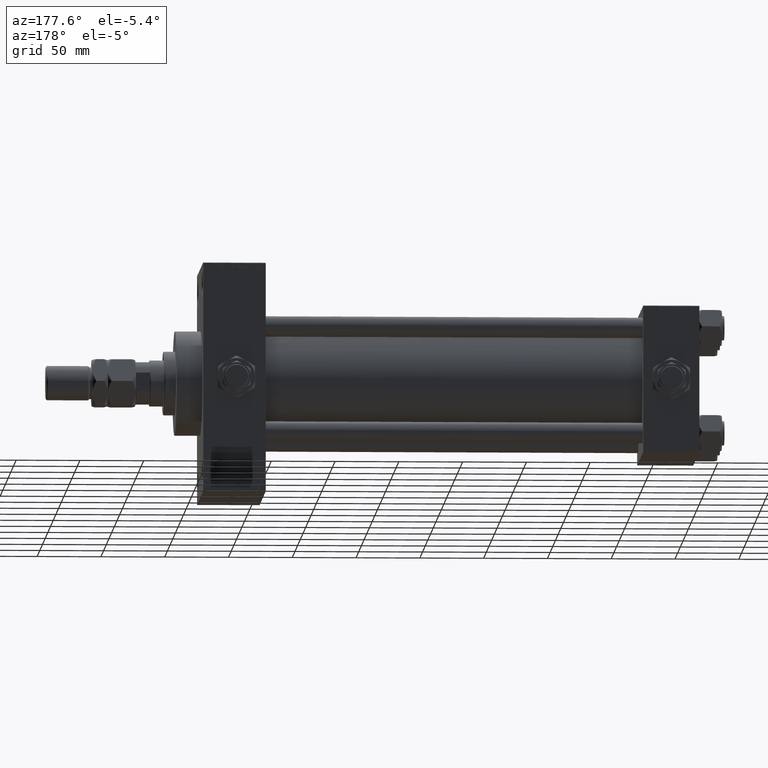
[diagram: clean part render]
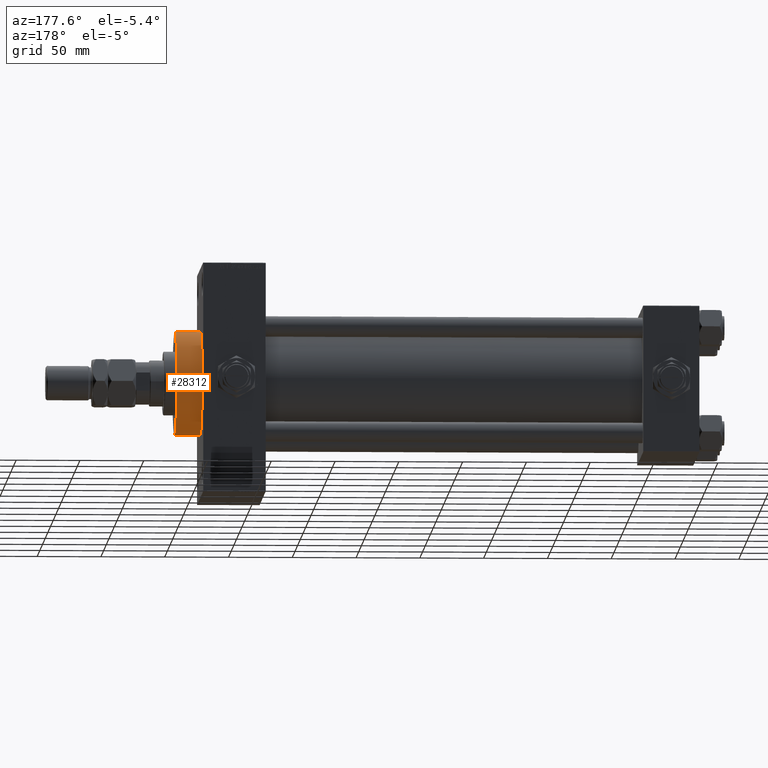
[diagram: same view with one face highlighted and labeled with its STEP entity id]
A machine part, auxiliary view. The second image highlights one B-rep face of the part: STEP entity #28312.
In plain terms, the highlighted cylindrical surface (partial cylindrical patch) has radius 41 mm, axis along (-1, -0, -0).
Its self-contained STEP definition (entity closure, byte-faithful):
#721 = AXIS2_PLACEMENT_3D ( 'NONE', #23708, #46868, #26581 ) ;
#931 = VERTEX_POINT ( 'NONE', #26502 ) ;
#3784 = CARTESIAN_POINT ( 'NONE',  ( 388.9999999999999432, 0.000000000000000000, 0.000000000000000000 ) ) ;
#5220 = DIRECTION ( 'NONE',  ( 0.000000000000000000, 0.000000000000000000, -1.000000000000000000 ) ) ;
#7085 = CYLINDRICAL_SURFACE ( 'NONE', #721, 41.00000000000000000 ) ;
#8625 = DIRECTION ( 'NONE',  ( 1.000000000000000000, 0.000000000000000000, 0.000000000000000000 ) ) ;
#11026 = CARTESIAN_POINT ( 'NONE',  ( 409.0000000000000000, 0.000000000000000000, 41.00000000000000000 ) ) ;
#12021 = CARTESIAN_POINT ( 'NONE',  ( 409.0000000000000000, 0.000000000000000000, 0.000000000000000000 ) ) ;
#16024 = LINE ( 'NONE', #31905, #20043 ) ;
#16832 = VERTEX_POINT ( 'NONE', #31885 ) ;
#18268 = CIRCLE ( 'NONE', #43194, 41.00000000000000000 ) ;
#18822 = VECTOR ( 'NONE', #34597, 1000.000000000000000 ) ;
#19970 = EDGE_CURVE ( 'NONE', #931, #29962, #22629, .T. ) ;
#20043 = VECTOR ( 'NONE', #43845, 1000.000000000000000 ) ;
#20637 = CIRCLE ( 'NONE', #23175, 41.00000000000000000 ) ;
#21092 = DIRECTION ( 'NONE',  ( 0.000000000000000000, 0.000000000000000000, -1.000000000000000000 ) ) ;
#22629 = LINE ( 'NONE', #38511, #18822 ) ;
#23175 = AXIS2_PLACEMENT_3D ( 'NONE', #12021, #8625, #5220 ) ;
#23708 = CARTESIAN_POINT ( 'NONE',  ( 409.0000000000000000, 0.000000000000000000, 0.000000000000000000 ) ) ;
#26502 = CARTESIAN_POINT ( 'NONE',  ( 409.0000000000000000, 5.021051876504148963E-15, -41.00000000000000000 ) ) ;
#26581 = DIRECTION ( 'NONE',  ( 0.000000000000000000, 0.000000000000000000, 1.000000000000000000 ) ) ;
#26744 = ORIENTED_EDGE ( 'NONE', *, *, #19970, .T. ) ;
#28312 = ADVANCED_FACE ( 'NONE', ( #35694 ), #7085, .T. ) ;
#28592 = CARTESIAN_POINT ( 'NONE',  ( 388.9999999999999432, 5.021051876504148963E-15, -41.00000000000000000 ) ) ;
#29962 = VERTEX_POINT ( 'NONE', #28592 ) ;
#31885 = CARTESIAN_POINT ( 'NONE',  ( 388.9999999999999432, 0.000000000000000000, 41.00000000000000000 ) ) ;
#31905 = CARTESIAN_POINT ( 'NONE',  ( 409.0000000000000000, 0.000000000000000000, 41.00000000000000000 ) ) ;
#32360 = ORIENTED_EDGE ( 'NONE', *, *, #41465, .F. ) ;
#32934 = EDGE_CURVE ( 'NONE', #45686, #16832, #16024, .T. ) ;
#34597 = DIRECTION ( 'NONE',  ( -1.000000000000000000, -0.000000000000000000, -0.000000000000000000 ) ) ;
#35694 = FACE_OUTER_BOUND ( 'NONE', #38959, .T. ) ;
#38511 = CARTESIAN_POINT ( 'NONE',  ( 409.0000000000000000, 5.021051876504148963E-15, -41.00000000000000000 ) ) ;
#38959 = EDGE_LOOP ( 'NONE', ( #32360, #26744, #42429, #49642 ) ) ;
#41465 = EDGE_CURVE ( 'NONE', #931, #45686, #20637, .T. ) ;
#42429 = ORIENTED_EDGE ( 'NONE', *, *, #47055, .T. ) ;
#43194 = AXIS2_PLACEMENT_3D ( 'NONE', #3784, #43319, #21092 ) ;
#43319 = DIRECTION ( 'NONE',  ( 1.000000000000000000, 0.000000000000000000, 0.000000000000000000 ) ) ;
#43845 = DIRECTION ( 'NONE',  ( -1.000000000000000000, -0.000000000000000000, -0.000000000000000000 ) ) ;
#45686 = VERTEX_POINT ( 'NONE', #11026 ) ;
#46868 = DIRECTION ( 'NONE',  ( -1.000000000000000000, -0.000000000000000000, -0.000000000000000000 ) ) ;
#47055 = EDGE_CURVE ( 'NONE', #29962, #16832, #18268, .T. ) ;
#49642 = ORIENTED_EDGE ( 'NONE', *, *, #32934, .F. ) ;